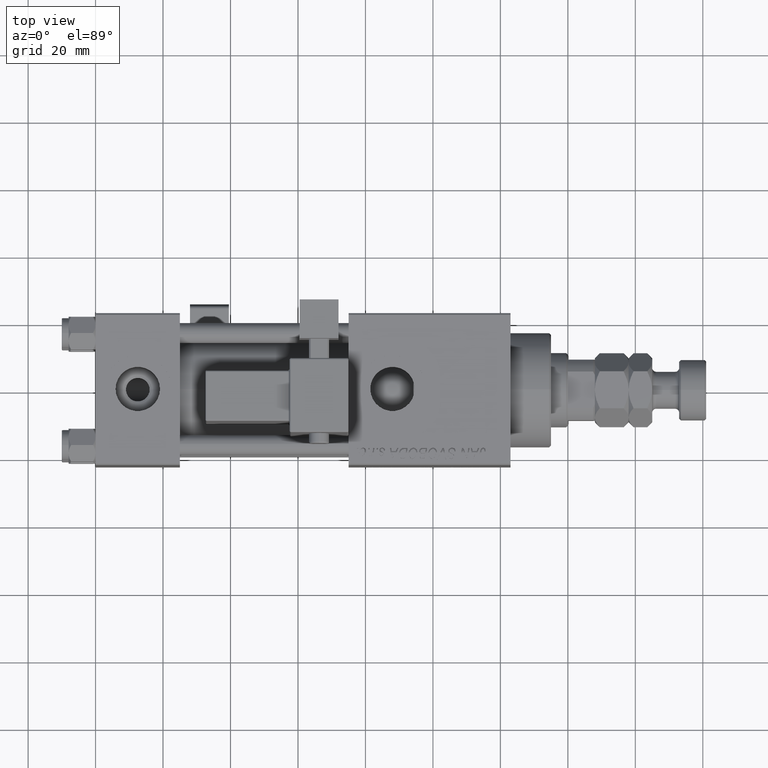
[diagram: clean part render]
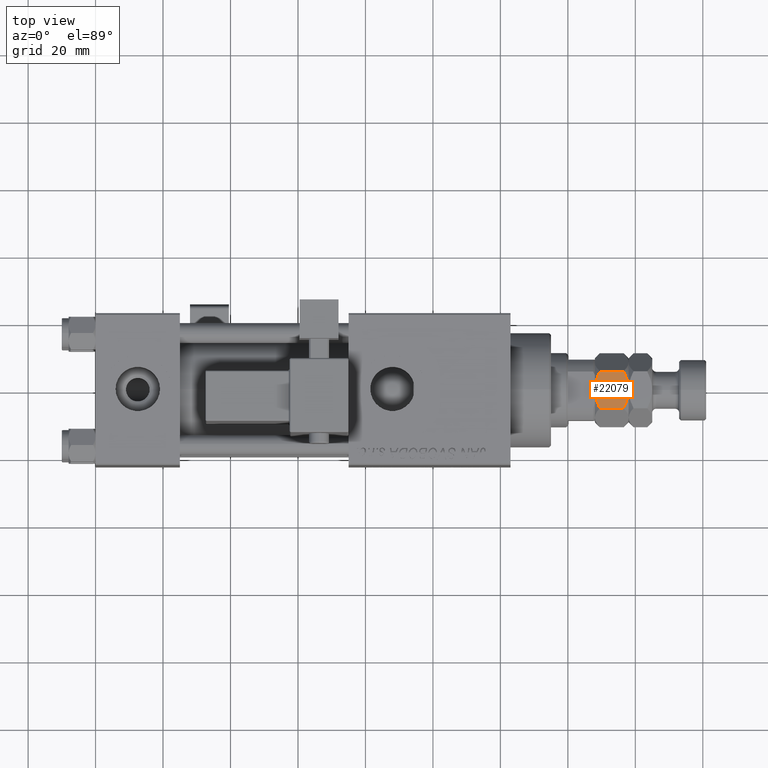
[diagram: same view with one face highlighted and labeled with its STEP entity id]
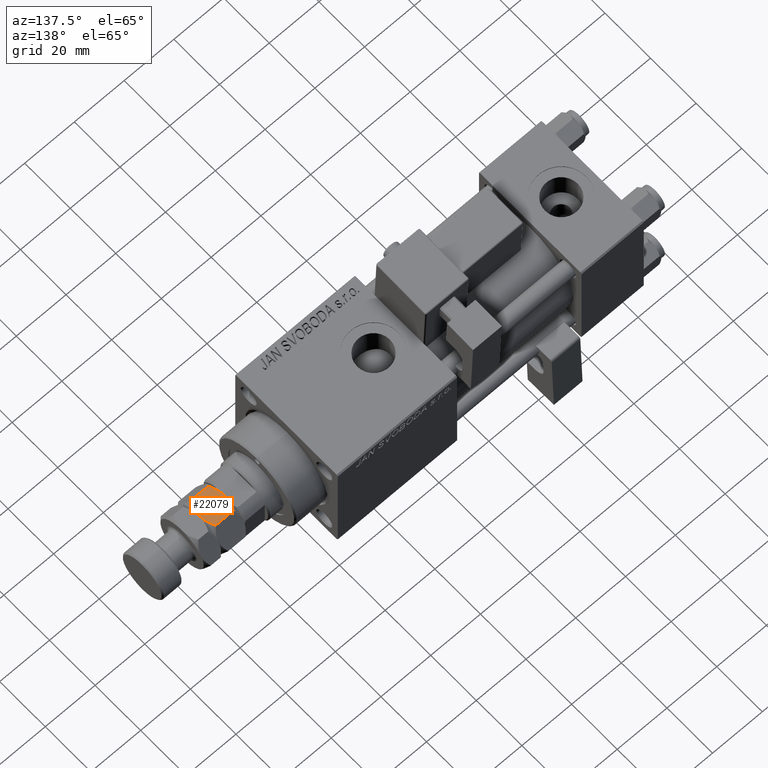
[diagram: same view with one face highlighted and labeled with its STEP entity id]
A machine part, top view. The second image highlights one B-rep face of the part: STEP entity #22079.
A second angle (auxiliary view) of the same face is appended — the face is thin or edge-on in the first view.
In plain terms, the highlighted planar face has unit normal (0, 0, -1).
Its self-contained STEP definition (entity closure, byte-faithful):
#604 = LINE ( 'NONE', #41507, #923 ) ;
#923 = VECTOR ( 'NONE', #34072, 1000.000000000000000 ) ;
#1577 = CARTESIAN_POINT ( 'NONE',  ( -9.500000000000000000, -1.891038971533061108, 9.824850495500340841 ) ) ;
#1867 = ORIENTED_EDGE ( 'NONE', *, *, #35430, .F. ) ;
#2178 = PLANE ( 'NONE',  #38040 ) ;
#2419 = CARTESIAN_POINT ( 'NONE',  ( -9.500000000000000000, 5.484827557301450440, 8.530344885397113330 ) ) ;
#3158 = CARTESIAN_POINT ( 'NONE',  ( -9.500000000000000000, 0.9479236874768390830, 0.03577730758446397152 ) ) ;
#3413 = CARTESIAN_POINT ( 'NONE',  ( -9.500000000000000000, -5.484827557301445999, 8.530344885397115107 ) ) ;
#3434 = CARTESIAN_POINT ( 'NONE',  ( -9.500000000000000000, 5.484827557301450440, 1.469655114602887114 ) ) ;
#5268 = VERTEX_POINT ( 'NONE', #3413 ) ;
#5434 = CARTESIAN_POINT ( 'NONE',  ( -9.500000000000003553, 0.4729811324588416022, 10.00000000000000178 ) ) ;
#5568 = CARTESIAN_POINT ( 'NONE',  ( -9.500000000000000000, 5.484827557301450440, 8.530344885397113330 ) ) ;
#8087 = CARTESIAN_POINT ( 'NONE',  ( -9.499999999999998224, 1.891038971533059110, 0.1751495044996551897 ) ) ;
#8709 = EDGE_CURVE ( 'NONE', #40779, #19878, #45604, .T. ) ;
#9658 = EDGE_CURVE ( 'NONE', #38038, #5268, #54001, .T. ) ;
#9811 = CARTESIAN_POINT ( 'NONE',  ( -9.500000000000001776, -0.9479236874768413035, 9.964222692415534155 ) ) ;
#10646 = CARTESIAN_POINT ( 'NONE',  ( -9.499999999999998224, 4.619321229330174639, 8.944243860401860147 ) ) ;
#11065 = B_SPLINE_CURVE_WITH_KNOTS ( 'NONE', 3,
 ( #2419, #13947, #10646, #39179, #27107, #39997, #35322, #38906, #5434, #14223 ),
 .UNSPECIFIED., .F., .F.,
 ( 4, 2, 2, 2, 4 ),
 ( 0.01710995699817097898, 0.01854089553334494628, 0.01997183406851891010, 0.02140277260369287740, 0.02283371113886684470 ),
 .UNSPECIFIED. ) ;
#12111 = B_SPLINE_CURVE_WITH_KNOTS ( 'NONE', 3,
 ( #28681, #24561, #3158, #8087, #20180, #45954, #19643, #3434 ),
 .UNSPECIFIED., .F., .F.,
 ( 4, 2, 2, 4 ),
 ( 0.02283371113886683776, 0.02427012866641926891, 0.02570654619397170007, 0.02857938124907656238 ),
 .UNSPECIFIED. ) ;
#13431 = CARTESIAN_POINT ( 'NONE',  ( -9.500000000000001776, -0.9476109094485490880, 0.03551930501265149198 ) ) ;
#13947 = CARTESIAN_POINT ( 'NONE',  ( -9.499999999999998224, 5.056260213613249732, 8.744628557241215461 ) ) ;
#14223 = CARTESIAN_POINT ( 'NONE',  ( -9.499999999999996447, 0.000000000000000000, 10.00000000000000000 ) ) ;
#14473 = ORIENTED_EDGE ( 'NONE', *, *, #9658, .F. ) ;
#14825 = ORIENTED_EDGE ( 'NONE', *, *, #45118, .F. ) ;
#15085 = DIRECTION ( 'NONE',  ( -0.000000000000000000, 0.000000000000000000, -1.000000000000000000 ) ) ;
#15578 = ORIENTED_EDGE ( 'NONE', *, *, #46654, .F. ) ;
#16162 = CARTESIAN_POINT ( 'NONE',  ( -9.500000000000000000, -5.484827557301445999, 1.469655114602884893 ) ) ;
#16476 = ORIENTED_EDGE ( 'NONE', *, *, #8709, .T. ) ;
#18166 = VERTEX_POINT ( 'NONE', #47527 ) ;
#18334 = CARTESIAN_POINT ( 'NONE',  ( -9.500000000000001776, -2.364456443984731315, 9.720211206247848068 ) ) ;
#18933 = CARTESIAN_POINT ( 'NONE',  ( -9.500000000000000000, 5.484827557301449552, 10.00000000000000000 ) ) ;
#19643 = CARTESIAN_POINT ( 'NONE',  ( -9.500000000000000000, 4.631112555686345722, 1.042797613795336753 ) ) ;
#19878 = VERTEX_POINT ( 'NONE', #47887 ) ;
#19947 = EDGE_CURVE ( 'NONE', #18166, #19878, #12111, .T. ) ;
#20016 = DIRECTION ( 'NONE',  ( 1.000000000000000000, 0.000000000000000000, -0.000000000000000000 ) ) ;
#20180 = CARTESIAN_POINT ( 'NONE',  ( -9.500000000000001776, 2.364456443984731759, 0.2797887937521522095 ) ) ;
#22079 = ADVANCED_FACE ( 'NONE', ( #35910 ), #2178, .F. ) ;
#23022 = ORIENTED_EDGE ( 'NONE', *, *, #19947, .F. ) ;
#24561 = CARTESIAN_POINT ( 'NONE',  ( -9.500000000000000000, 0.4747921536566064860, -5.336307567702092136E-17 ) ) ;
#26030 = CARTESIAN_POINT ( 'NONE',  ( -9.500000000000001776, -0.4729811324588428234, 5.421010862427519705E-17 ) ) ;
#27107 = CARTESIAN_POINT ( 'NONE',  ( -9.500000000000000000, 3.284755346118642727, 9.457750254881881702 ) ) ;
#28681 = CARTESIAN_POINT ( 'NONE',  ( -9.500000000000000000, 0.000000000000000000, 0.000000000000000000 ) ) ;
#29085 = CARTESIAN_POINT ( 'NONE',  ( -9.500000000000001776, -3.284755346118642727, 0.5422497451181170769 ) ) ;
#30149 = CARTESIAN_POINT ( 'NONE',  ( -9.500000000000001776, -1.900126426538963242, 0.1767061760391781533 ) ) ;
#31202 = EDGE_LOOP ( 'NONE', ( #1867, #14825, #14473, #15578, #16476, #23022 ) ) ;
#33196 = CARTESIAN_POINT ( 'NONE',  ( -9.500000000000001776, -4.619321229330175527, 1.055756139598138077 ) ) ;
#33457 = CARTESIAN_POINT ( 'NONE',  ( -9.499999999999998224, -5.056260213613243515, 1.255371442758782985 ) ) ;
#34072 = DIRECTION ( 'NONE',  ( -0.000000000000000000, -0.000000000000000000, -1.000000000000000000 ) ) ;
#34767 = CARTESIAN_POINT ( 'NONE',  ( -9.499999999999996447, 0.000000000000000000, 10.00000000000000000 ) ) ;
#35032 = CARTESIAN_POINT ( 'NONE',  ( -9.500000000000000000, -5.484827557301445999, 8.530344885397115107 ) ) ;
#35322 = CARTESIAN_POINT ( 'NONE',  ( -9.500000000000001776, 1.900126426538962798, 9.823293823960822735 ) ) ;
#35430 = EDGE_CURVE ( 'NONE', #37739, #18166, #37451, .T. ) ;
#35910 = FACE_OUTER_BOUND ( 'NONE', #31202, .T. ) ;
#37451 = B_SPLINE_CURVE_WITH_KNOTS ( 'NONE', 3,
 ( #49667, #33457, #33196, #49931, #29085, #50200, #30149, #13431, #26030, #51538 ),
 .UNSPECIFIED., .F., .F.,
 ( 4, 2, 2, 2, 4 ),
 ( 0.01710995699817097551, 0.01854089553334493934, 0.01997183406851890664, 0.02140277260369287393, 0.02283371113886683776 ),
 .UNSPECIFIED. ) ;
#37739 = VERTEX_POINT ( 'NONE', #16162 ) ;
#37902 = DIRECTION ( 'NONE',  ( -0.000000000000000000, -0.000000000000000000, -1.000000000000000000 ) ) ;
#38038 = VERTEX_POINT ( 'NONE', #52043 ) ;
#38040 = AXIS2_PLACEMENT_3D ( 'NONE', #18933, #20016, #15085 ) ;
#38077 = CARTESIAN_POINT ( 'NONE',  ( -9.500000000000003553, -3.751526451643773630, 9.324617500212356802 ) ) ;
#38350 = CARTESIAN_POINT ( 'NONE',  ( -9.500000000000001776, -4.631112555686342169, 8.957202386204667022 ) ) ;
#38906 = CARTESIAN_POINT ( 'NONE',  ( -9.500000000000000000, 0.9476109094485472006, 9.964480694987347675 ) ) ;
#39179 = CARTESIAN_POINT ( 'NONE',  ( -9.499999999999994671, 3.734178907538126868, 9.300492601481865407 ) ) ;
#39997 = CARTESIAN_POINT ( 'NONE',  ( -9.500000000000003553, 2.368438208135732914, 9.719066414435319601 ) ) ;
#40779 = VERTEX_POINT ( 'NONE', #5568 ) ;
#41507 = CARTESIAN_POINT ( 'NONE',  ( -9.500000000000000000, -5.484827557301445999, 10.00000000000000000 ) ) ;
#42463 = CARTESIAN_POINT ( 'NONE',  ( -9.499999999999998224, -0.4747921536566078182, 9.999999999999998224 ) ) ;
#43613 = VECTOR ( 'NONE', #37902, 1000.000000000000000 ) ;
#45118 = EDGE_CURVE ( 'NONE', #5268, #37739, #604, .T. ) ;
#45604 = LINE ( 'NONE', #45873, #43613 ) ;
#45873 = CARTESIAN_POINT ( 'NONE',  ( -9.500000000000000000, 5.484827557301449552, 10.00000000000000000 ) ) ;
#45954 = CARTESIAN_POINT ( 'NONE',  ( -9.500000000000001776, 3.751526451643775406, 0.6753824997876441971 ) ) ;
#46654 = EDGE_CURVE ( 'NONE', #40779, #38038, #11065, .T. ) ;
#47527 = CARTESIAN_POINT ( 'NONE',  ( -9.500000000000000000, 0.000000000000000000, 0.000000000000000000 ) ) ;
#47887 = CARTESIAN_POINT ( 'NONE',  ( -9.500000000000000000, 5.484827557301450440, 1.469655114602887114 ) ) ;
#49667 = CARTESIAN_POINT ( 'NONE',  ( -9.500000000000000000, -5.484827557301445999, 1.469655114602884893 ) ) ;
#49931 = CARTESIAN_POINT ( 'NONE',  ( -9.500000000000000000, -3.734178907538126868, 0.6995073985181277099 ) ) ;
#50200 = CARTESIAN_POINT ( 'NONE',  ( -9.500000000000001776, -2.368438208135733358, 0.2809335855646786784 ) ) ;
#51538 = CARTESIAN_POINT ( 'NONE',  ( -9.500000000000000000, 0.000000000000000000, 0.000000000000000000 ) ) ;
#52043 = CARTESIAN_POINT ( 'NONE',  ( -9.499999999999996447, 0.000000000000000000, 10.00000000000000000 ) ) ;
#54001 = B_SPLINE_CURVE_WITH_KNOTS ( 'NONE', 3,
 ( #34767, #42463, #9811, #1577, #18334, #38077, #38350, #35032 ),
 .UNSPECIFIED., .F., .F.,
 ( 4, 2, 2, 4 ),
 ( 0.02283371113886684470, 0.02427012866641927585, 0.02570654619397170354, 0.02857938124907656238 ),
 .UNSPECIFIED. ) ;